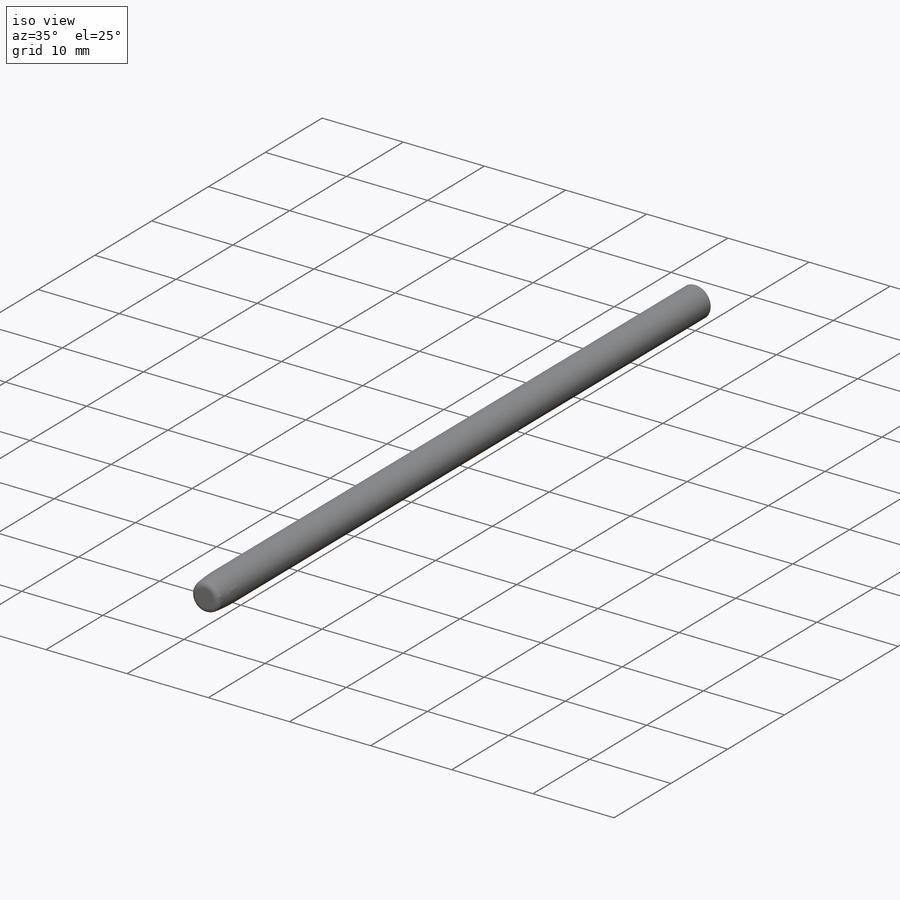
[diagram: iso view]
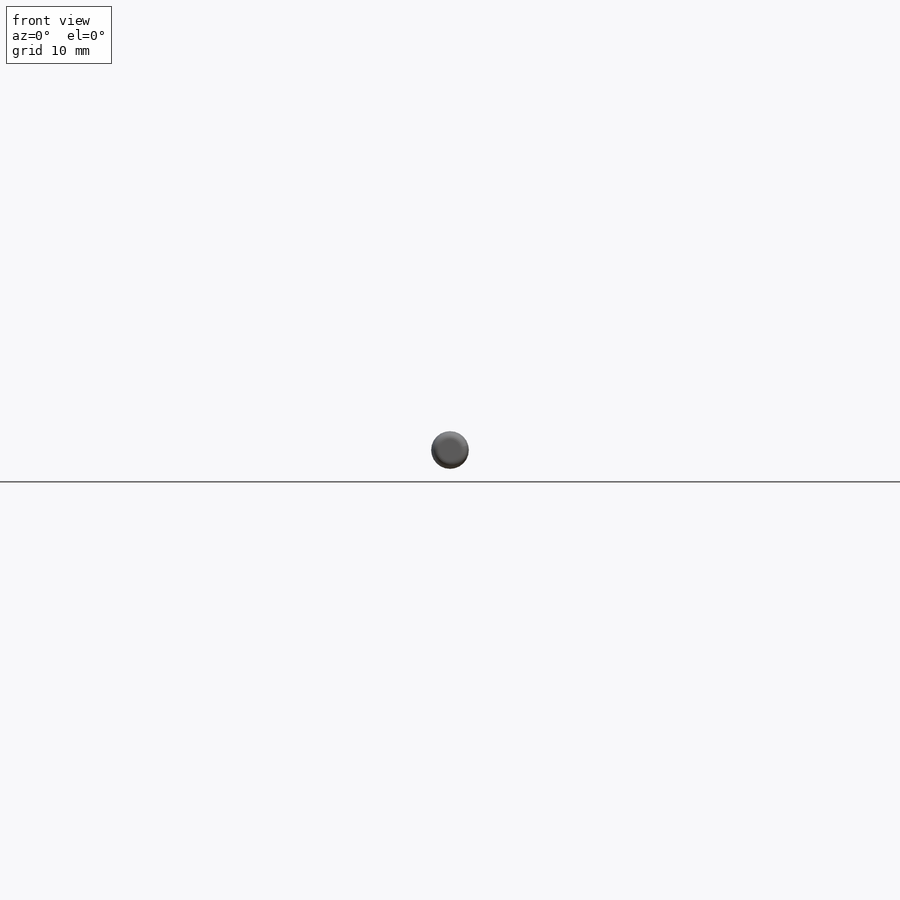
[diagram: front view]
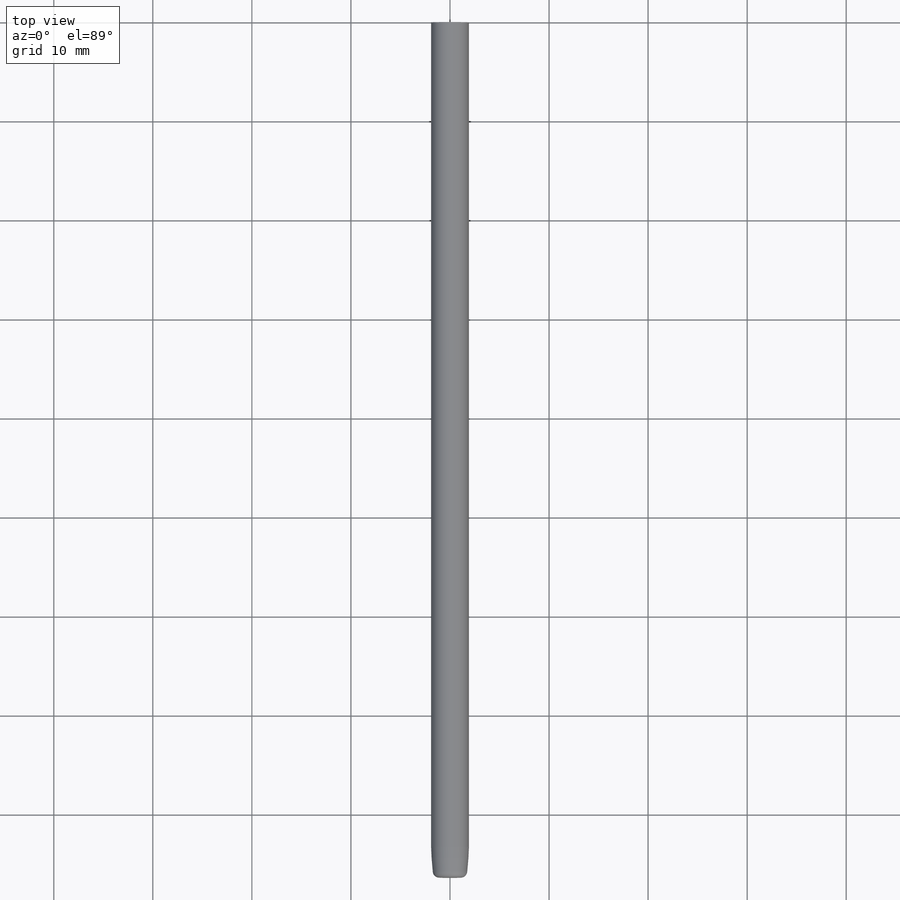
[diagram: top view]
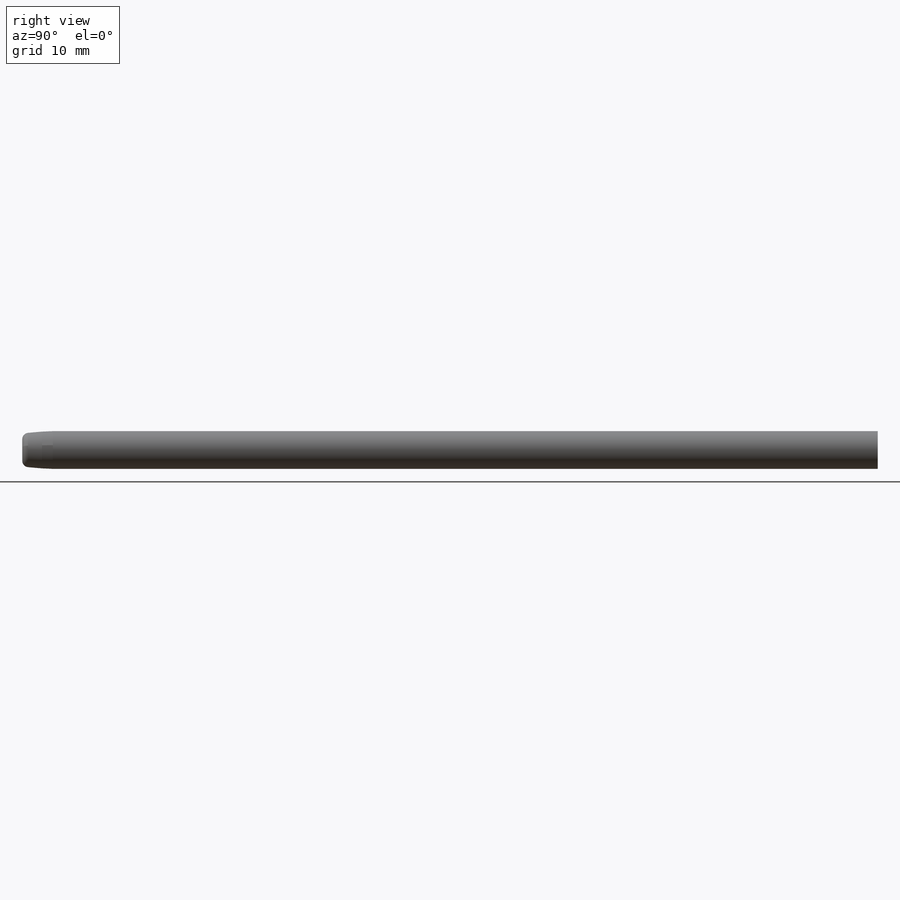
[diagram: right view]
SOLIDWORKS PART (.sldprt)
format: sldprt  version: not decoded by parser v0  size: 135,168 bytes
history: native  units: mm
features: fillet x2, material x1, sketch x1, extrude x1, chamfer x1 (+13 scaffold rows collapsed)
feature tree (19):
  scaffold x13  (default folders/planes/origin — collapsed)
  material  "Material <not specified>"
  sketch  "Sketch2"  dims[D1=3.81mm]
  extrude  "Boss-Extrude1"  Depth=86.36mm
  chamfer  "Chamfer1"  Distance=2.54mm Angle=5deg
  fillet  "Fillet1"  Radius=12.7mm
  fillet  "Fillet2"  Radius=0.635mm
decode coverage: 5 of 5 modeling features carry decoded parameters
note: suppression state not decoded; provenance and decode notes live in map.json
